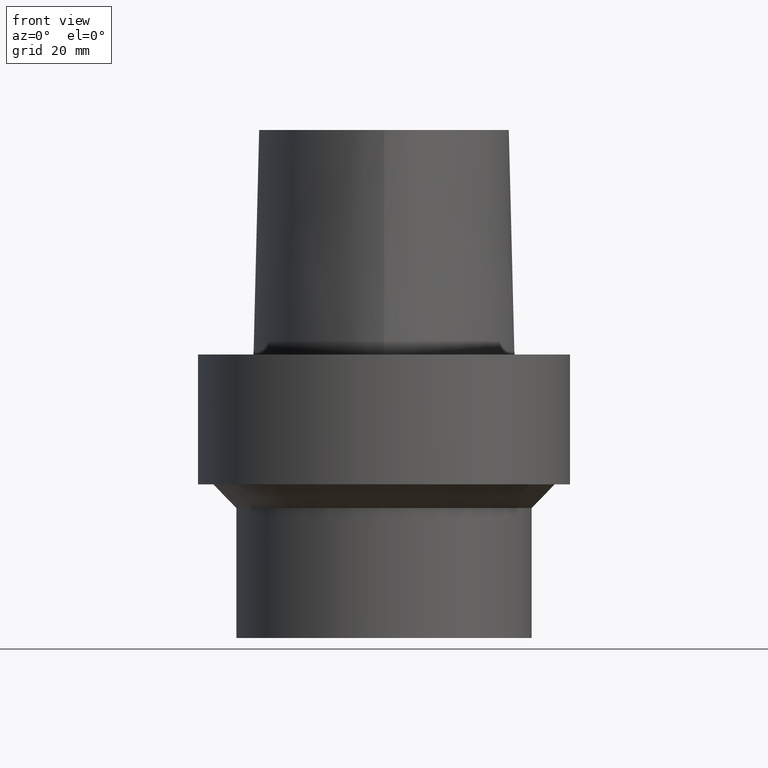
[diagram: clean part render]
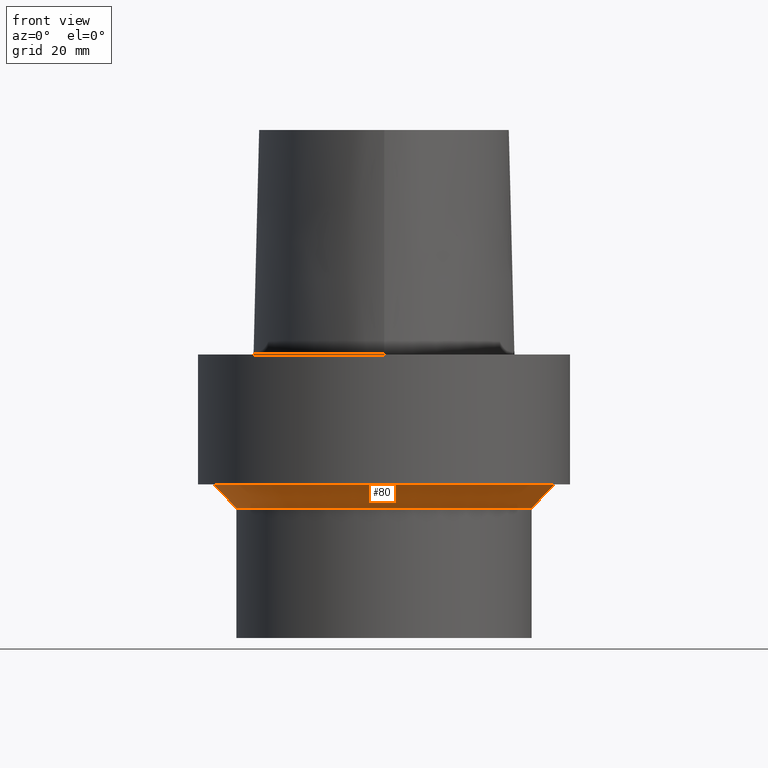
[diagram: same view with one face highlighted and labeled with its STEP entity id]
A machine part, front view. The second image highlights one B-rep face of the part: STEP entity #80.
In plain terms, the highlighted conical surface has half-angle 45 deg.
Its self-contained STEP definition (entity closure, byte-faithful):
#80=ADVANCED_FACE('',(#97,#98),#99,.T.);
#97=FACE_BOUND('',#260,.T.);
#98=FACE_BOUND('',#261,.T.);
#99=CONICAL_SURFACE('',#262,27.0,0.785398163397448);
#260=EDGE_LOOP('',(#298));
#261=EDGE_LOOP('',(#299));
#262=AXIS2_PLACEMENT_3D('',#300,#301,#302);
#298=ORIENTED_EDGE('',*,*,#334,.F.);
#299=ORIENTED_EDGE('',*,*,#332,.T.);
#300=CARTESIAN_POINT('',(1.46957615897682E-015,2.93915231795365E-015,-24.0));
#301=DIRECTION('',(-6.12323399573677E-017,-1.22464679914735E-016,1.0));
#302=DIRECTION('',(-1.23259516440783E-032,1.0,1.22464679914735E-016));
#332=EDGE_CURVE('',#350,#350,#351,.T.);
#334=EDGE_CURVE('',#354,#354,#355,.T.);
#350=VERTEX_POINT('',#439);
#351=CIRCLE('',#440,29.0);
#354=VERTEX_POINT('',#443);
#355=CIRCLE('',#444,25.0);
#439=CARTESIAN_POINT('',(1.34711147906209E-015,29.0,-22.0));
#440=AXIS2_PLACEMENT_3D('',#455,#456,#457);
#443=CARTESIAN_POINT('',(1.59204083889156E-015,25.0,-26.0));
#444=AXIS2_PLACEMENT_3D('',#461,#462,#463);
#455=CARTESIAN_POINT('',(1.34711147906209E-015,2.69422295812418E-015,-22.0));
#456=DIRECTION('',(6.12323399573677E-017,1.22464679914735E-016,-1.0));
#457=DIRECTION('',(-1.23259516440783E-032,1.0,1.22464679914735E-016));
#461=CARTESIAN_POINT('',(1.59204083889156E-015,3.18408167778312E-015,-26.0));
#462=DIRECTION('',(6.12323399573677E-017,1.22464679914735E-016,-1.0));
#463=DIRECTION('',(-1.23259516440783E-032,1.0,1.22464679914735E-016));